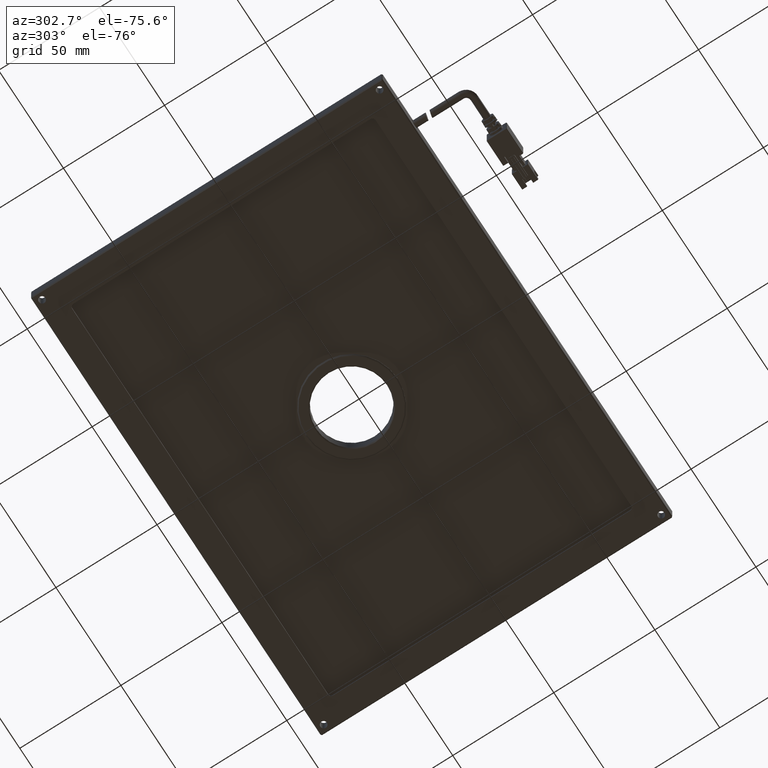
[diagram: clean part render]
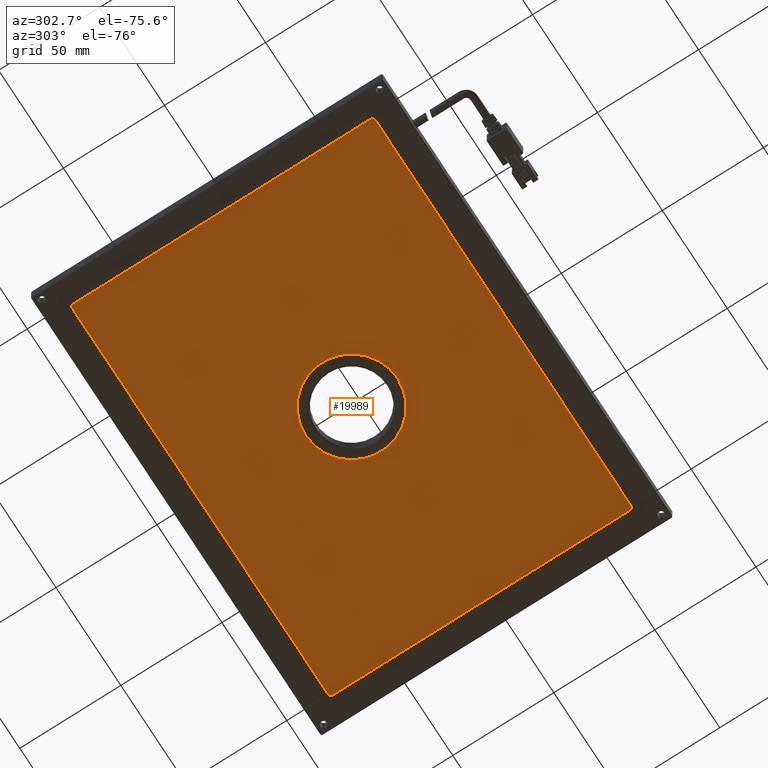
[diagram: same view with one face highlighted and labeled with its STEP entity id]
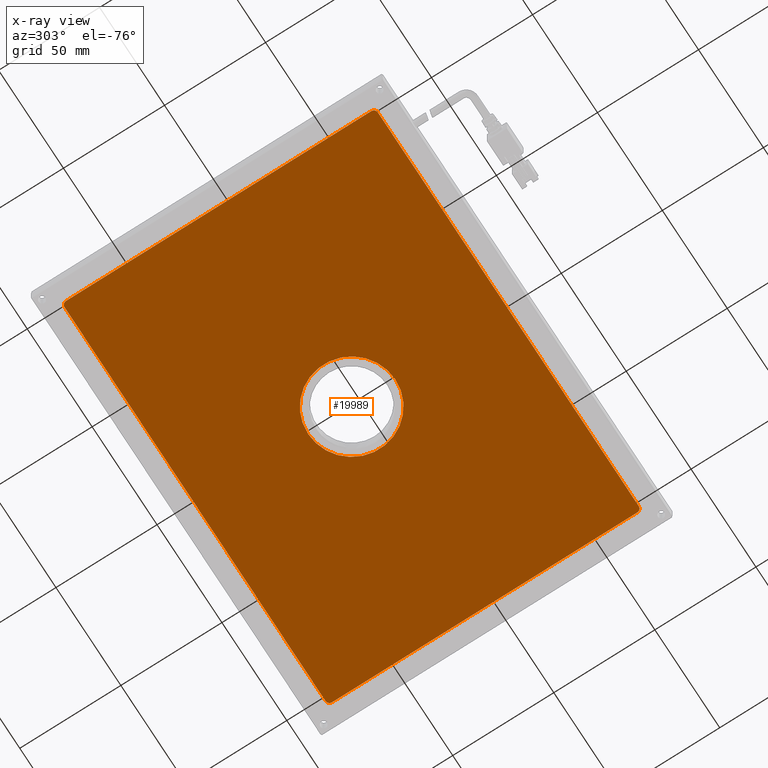
[diagram: x-ray of the same camera — body ghosted, the highlighted face saturated]
A machine part, auxiliary view. The second image highlights one B-rep face of the part: STEP entity #19989.
The next image is the same camera in x-ray: the body ghosted, the highlighted face saturated — about 0% of this face is hidden behind the body in this view.
In plain terms, the highlighted planar face has unit normal (0, 0, 1).
Its self-contained STEP definition (entity closure, byte-faithful):
#951 = FACE_BOUND ( 'NONE', #15179, .T. ) ;
#1195 = CARTESIAN_POINT ( 'NONE',  ( 102.8229746835443400, -72.30746835443035500, -2.749999999999999600 ) ) ;
#1946 = DIRECTION ( 'NONE',  ( 0.0000000000000000000, 0.0000000000000000000, 1.000000000000000000 ) ) ;
#2137 = EDGE_CURVE ( 'NONE', #5383, #4147, #35814, .T. ) ;
#2385 = VECTOR ( 'NONE', #49966, 1000.000000000000000 ) ;
#4147 = VERTEX_POINT ( 'NONE', #37868 ) ;
#4875 = VERTEX_POINT ( 'NONE', #1195 ) ;
#5205 = FACE_OUTER_BOUND ( 'NONE', #36604, .T. ) ;
#5383 = VERTEX_POINT ( 'NONE', #43672 ) ;
#5398 = ORIENTED_EDGE ( 'NONE', *, *, #35853, .F. ) ;
#5972 = VERTEX_POINT ( 'NONE', #15979 ) ;
#6140 = DIRECTION ( 'NONE',  ( 0.0000000000000000000, 1.000000000000000000, 0.0000000000000000000 ) ) ;
#6677 = CIRCLE ( 'NONE', #41795, 2.000000000000001800 ) ;
#7312 = CARTESIAN_POINT ( 'NONE',  ( -98.17702531645565500, 80.69253164556963000, -2.749999999999999600 ) ) ;
#7936 = EDGE_CURVE ( 'NONE', #20929, #32465, #25327, .T. ) ;
#10274 = VECTOR ( 'NONE', #21715, 1000.000000000000000 ) ;
#11108 = ORIENTED_EDGE ( 'NONE', *, *, #45891, .T. ) ;
#12425 = CARTESIAN_POINT ( 'NONE',  ( -100.1770253164556700, 82.69253164556964500, -2.749999999999999600 ) ) ;
#12554 = LINE ( 'NONE', #19309, #2385 ) ;
#13150 = AXIS2_PLACEMENT_3D ( 'NONE', #40155, #1946, #44664 ) ;
#13210 = CARTESIAN_POINT ( 'NONE',  ( -98.17702531645565500, 82.69253164556964500, -2.749999999999999600 ) ) ;
#13234 = AXIS2_PLACEMENT_3D ( 'NONE', #7312, #38168, #49127 ) ;
#13968 = CARTESIAN_POINT ( 'NONE',  ( -100.1770253164556700, -72.30746835443035500, -2.749999999999999600 ) ) ;
#14167 = ORIENTED_EDGE ( 'NONE', *, *, #18848, .T. ) ;
#14456 = VERTEX_POINT ( 'NONE', #21628 ) ;
#14480 = DIRECTION ( 'NONE',  ( 0.0000000000000000000, 0.0000000000000000000, 1.000000000000000000 ) ) ;
#15037 = CARTESIAN_POINT ( 'NONE',  ( 2.322974683544365900, 5.192531645569626000, -2.749999999999999600 ) ) ;
#15179 = EDGE_LOOP ( 'NONE', ( #29729, #14167 ) ) ;
#15226 = AXIS2_PLACEMENT_3D ( 'NONE', #28569, #20467, #16625 ) ;
#15979 = CARTESIAN_POINT ( 'NONE',  ( 2.322974683544365900, 26.79253164556962800, -2.749999999999999600 ) ) ;
#16399 = ORIENTED_EDGE ( 'NONE', *, *, #2137, .F. ) ;
#16625 = DIRECTION ( 'NONE',  ( 0.0000000000000000000, 1.000000000000000000, 0.0000000000000000000 ) ) ;
#17303 = DIRECTION ( 'NONE',  ( 1.000000000000000000, -0.0000000000000000000, 0.0000000000000000000 ) ) ;
#17998 = VECTOR ( 'NONE', #47459, 1000.000000000000000 ) ;
#18567 = DIRECTION ( 'NONE',  ( 0.0000000000000000000, -1.000000000000000000, 0.0000000000000000000 ) ) ;
#18848 = EDGE_CURVE ( 'NONE', #14456, #5972, #19226, .T. ) ;
#19096 = CARTESIAN_POINT ( 'NONE',  ( -100.1770253164556700, 80.69253164556963000, -2.749999999999999600 ) ) ;
#19191 = VECTOR ( 'NONE', #17303, 1000.000000000000000 ) ;
#19226 = CIRCLE ( 'NONE', #15226, 21.60000000000000100 ) ;
#19240 = ORIENTED_EDGE ( 'NONE', *, *, #35877, .T. ) ;
#19309 = CARTESIAN_POINT ( 'NONE',  ( 104.8229746835443400, 82.69253164556964500, -2.749999999999999600 ) ) ;
#19989 = ADVANCED_FACE ( 'NONE', ( #5205, #951 ), #41658, .F. ) ;
#20467 = DIRECTION ( 'NONE',  ( -0.0000000000000000000, -0.0000000000000000000, 1.000000000000000000 ) ) ;
#20929 = VERTEX_POINT ( 'NONE', #13210 ) ;
#21628 = CARTESIAN_POINT ( 'NONE',  ( 2.322974683544368500, -16.40746835443037500, -2.749999999999999600 ) ) ;
#21715 = DIRECTION ( 'NONE',  ( -1.000000000000000000, -0.0000000000000000000, -0.0000000000000000000 ) ) ;
#22609 = AXIS2_PLACEMENT_3D ( 'NONE', #44175, #40354, #6140 ) ;
#22612 = EDGE_CURVE ( 'NONE', #5972, #14456, #25505, .T. ) ;
#23596 = ORIENTED_EDGE ( 'NONE', *, *, #27099, .T. ) ;
#24723 = VERTEX_POINT ( 'NONE', #42845 ) ;
#25012 = CARTESIAN_POINT ( 'NONE',  ( 104.8229746835443400, -70.30746835443035500, -2.749999999999999600 ) ) ;
#25327 = CIRCLE ( 'NONE', #13234, 2.000000000000001800 ) ;
#25505 = CIRCLE ( 'NONE', #22609, 21.60000000000000100 ) ;
#25568 = CARTESIAN_POINT ( 'NONE',  ( -98.17702531645565500, -70.30746835443035500, -2.749999999999999600 ) ) ;
#25716 = CARTESIAN_POINT ( 'NONE',  ( -100.1770253164556700, 82.69253164556964500, -2.749999999999999600 ) ) ;
#27099 = EDGE_CURVE ( 'NONE', #20929, #4147, #42113, .T. ) ;
#27382 = ORIENTED_EDGE ( 'NONE', *, *, #36582, .T. ) ;
#27822 = VERTEX_POINT ( 'NONE', #31908 ) ;
#28569 = CARTESIAN_POINT ( 'NONE',  ( 2.322974683544365900, 5.192531645569626000, -2.749999999999999600 ) ) ;
#29582 = EDGE_CURVE ( 'NONE', #4875, #40996, #48891, .T. ) ;
#29729 = ORIENTED_EDGE ( 'NONE', *, *, #22612, .T. ) ;
#30146 = ORIENTED_EDGE ( 'NONE', *, *, #29582, .F. ) ;
#30191 = DIRECTION ( 'NONE',  ( 0.0000000000000000000, 0.0000000000000000000, 1.000000000000000000 ) ) ;
#31908 = CARTESIAN_POINT ( 'NONE',  ( -98.17702531645565500, -72.30746835443035500, -2.749999999999999600 ) ) ;
#32465 = VERTEX_POINT ( 'NONE', #19096 ) ;
#34040 = CARTESIAN_POINT ( 'NONE',  ( 102.8229746835443300, -70.30746835443035500, -2.749999999999999600 ) ) ;
#34636 = ORIENTED_EDGE ( 'NONE', *, *, #7936, .F. ) ;
#35814 = CIRCLE ( 'NONE', #13150, 2.000000000000001800 ) ;
#35853 = EDGE_CURVE ( 'NONE', #24723, #27822, #6677, .T. ) ;
#35877 = EDGE_CURVE ( 'NONE', #4875, #27822, #47651, .T. ) ;
#36327 = AXIS2_PLACEMENT_3D ( 'NONE', #15037, #37956, #18567 ) ;
#36582 = EDGE_CURVE ( 'NONE', #5383, #40996, #12554, .T. ) ;
#36604 = EDGE_LOOP ( 'NONE', ( #5398, #11108, #34636, #23596, #16399, #27382, #30146, #19240 ) ) ;
#37868 = CARTESIAN_POINT ( 'NONE',  ( 102.8229746835443200, 82.69253164556964500, -2.749999999999999600 ) ) ;
#37956 = DIRECTION ( 'NONE',  ( 0.0000000000000000000, 0.0000000000000000000, 1.000000000000000000 ) ) ;
#38168 = DIRECTION ( 'NONE',  ( 0.0000000000000000000, 0.0000000000000000000, 1.000000000000000000 ) ) ;
#38521 = LINE ( 'NONE', #12425, #17998 ) ;
#40155 = CARTESIAN_POINT ( 'NONE',  ( 102.8229746835443300, 80.69253164556963000, -2.749999999999999600 ) ) ;
#40354 = DIRECTION ( 'NONE',  ( -0.0000000000000000000, -0.0000000000000000000, 1.000000000000000000 ) ) ;
#40996 = VERTEX_POINT ( 'NONE', #25012 ) ;
#41658 = PLANE ( 'NONE',  #36327 ) ;
#41795 = AXIS2_PLACEMENT_3D ( 'NONE', #25568, #14480, #48685 ) ;
#41810 = AXIS2_PLACEMENT_3D ( 'NONE', #34040, #30191, #49737 ) ;
#42113 = LINE ( 'NONE', #25716, #19191 ) ;
#42845 = CARTESIAN_POINT ( 'NONE',  ( -100.1770253164556700, -70.30746835443035500, -2.749999999999999600 ) ) ;
#43672 = CARTESIAN_POINT ( 'NONE',  ( 104.8229746835443400, 80.69253164556963000, -2.749999999999999600 ) ) ;
#44175 = CARTESIAN_POINT ( 'NONE',  ( 2.322974683544365900, 5.192531645569626000, -2.749999999999999600 ) ) ;
#44664 = DIRECTION ( 'NONE',  ( 0.0000000000000000000, -1.000000000000000000, 0.0000000000000000000 ) ) ;
#45891 = EDGE_CURVE ( 'NONE', #24723, #32465, #38521, .T. ) ;
#47459 = DIRECTION ( 'NONE',  ( -0.0000000000000000000, 1.000000000000000000, -0.0000000000000000000 ) ) ;
#47651 = LINE ( 'NONE', #13968, #10274 ) ;
#48685 = DIRECTION ( 'NONE',  ( 0.0000000000000000000, -1.000000000000000000, 0.0000000000000000000 ) ) ;
#48891 = CIRCLE ( 'NONE', #41810, 2.000000000000001800 ) ;
#49127 = DIRECTION ( 'NONE',  ( 0.0000000000000000000, -1.000000000000000000, 0.0000000000000000000 ) ) ;
#49737 = DIRECTION ( 'NONE',  ( 0.0000000000000000000, -1.000000000000000000, 0.0000000000000000000 ) ) ;
#49966 = DIRECTION ( 'NONE',  ( -0.0000000000000000000, -1.000000000000000000, -0.0000000000000000000 ) ) ;